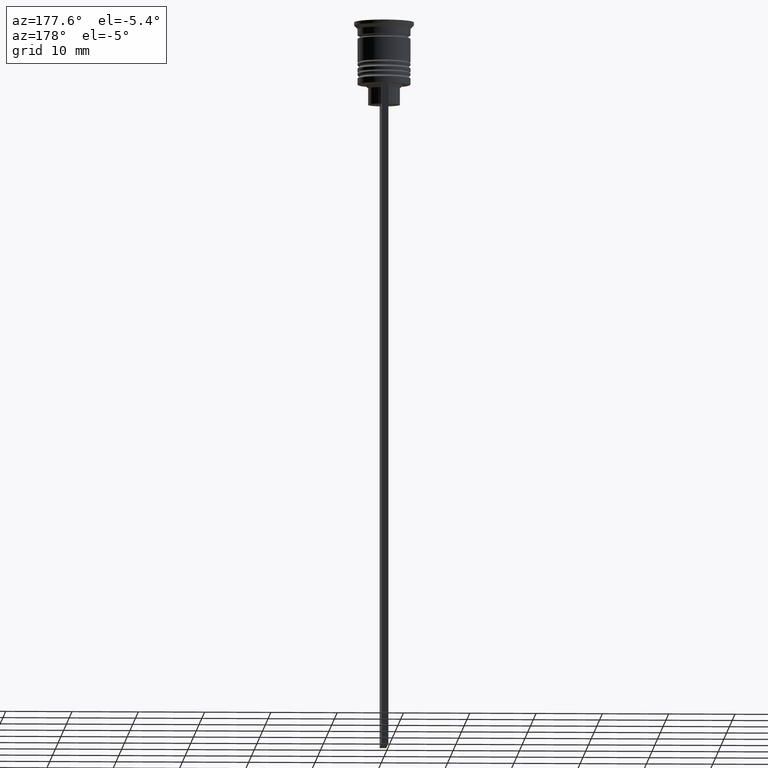
[diagram: clean part render]
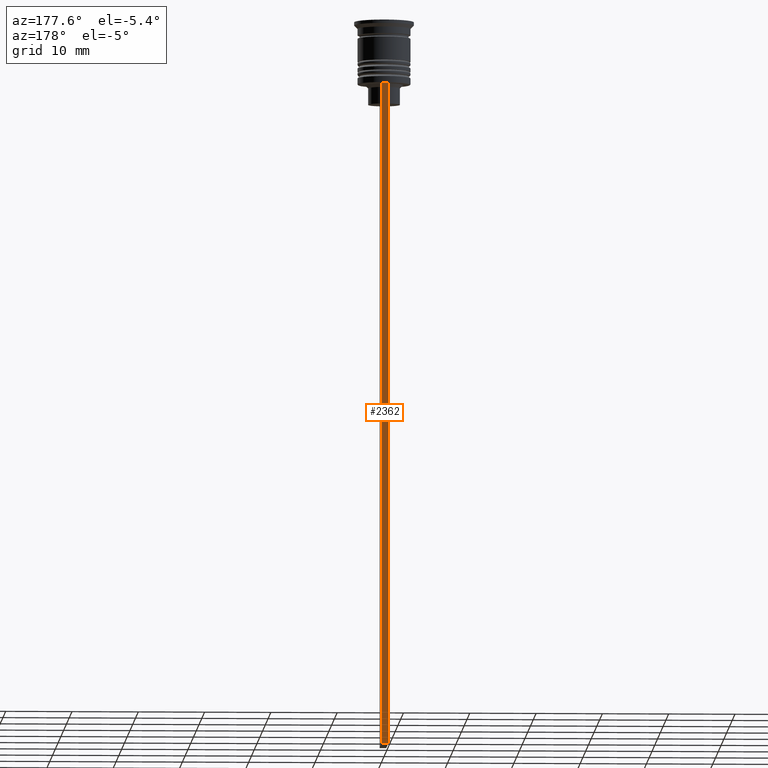
[diagram: same view with one face highlighted and labeled with its STEP entity id]
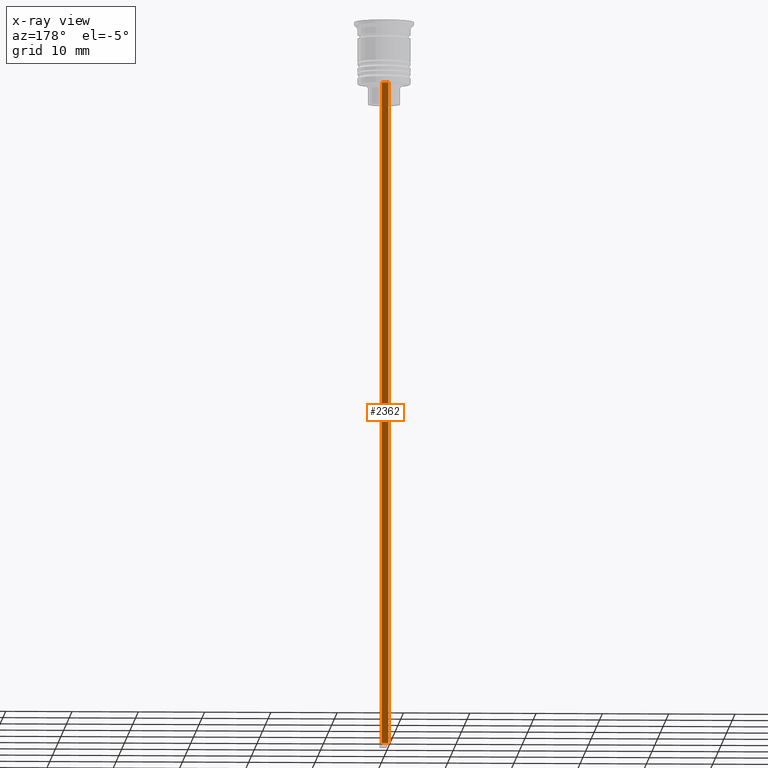
[diagram: x-ray of the same camera — body ghosted, the highlighted face saturated]
A machine part, auxiliary view. The second image highlights one B-rep face of the part: STEP entity #2362.
The next image is the same camera in x-ray: the body ghosted, the highlighted face saturated — about 0% of this face is hidden behind the body in this view.
In plain terms, the highlighted planar face has unit normal (0, -1, -0).
Its self-contained STEP definition (entity closure, byte-faithful):
#14 = VECTOR ( 'NONE', #1185, 1000.000000000000000 ) ;
#22 = VERTEX_POINT ( 'NONE', #433 ) ;
#36 = ORIENTED_EDGE ( 'NONE', *, *, #983, .F. ) ;
#100 = ORIENTED_EDGE ( 'NONE', *, *, #1430, .T. ) ;
#208 = CARTESIAN_POINT ( 'NONE',  ( 0.5000000000000000000, 4.000000000000000000, -109.5000000000000000 ) ) ;
#259 = CARTESIAN_POINT ( 'NONE',  ( 0.5000000000000000000, 4.000000000000000000, -9.500000000000000000 ) ) ;
#360 = DIRECTION ( 'NONE',  ( 0.000000000000000000, 0.000000000000000000, -1.000000000000000000 ) ) ;
#379 = VERTEX_POINT ( 'NONE', #1624 ) ;
#404 = CARTESIAN_POINT ( 'NONE',  ( -0.5000000000000000000, 4.000000000000000000, -1.437742251701450202 ) ) ;
#432 = DIRECTION ( 'NONE',  ( 0.000000000000000000, 0.000000000000000000, -1.000000000000000000 ) ) ;
#433 = CARTESIAN_POINT ( 'NONE',  ( 0.5000000000000000000, 4.000000000000000000, -9.500000000000000000 ) ) ;
#711 = ORIENTED_EDGE ( 'NONE', *, *, #1812, .T. ) ;
#777 = CARTESIAN_POINT ( 'NONE',  ( 0.5000000000000000000, 4.000000000000000000, -1.437742251701450202 ) ) ;
#983 = EDGE_CURVE ( 'NONE', #1806, #379, #1353, .T. ) ;
#985 = VERTEX_POINT ( 'NONE', #208 ) ;
#1005 = DIRECTION ( 'NONE',  ( 1.000000000000000000, 0.000000000000000000, 0.000000000000000000 ) ) ;
#1032 = EDGE_CURVE ( 'NONE', #1806, #22, #1399, .T. ) ;
#1046 = EDGE_LOOP ( 'NONE', ( #36, #1362, #100, #711 ) ) ;
#1062 = PLANE ( 'NONE',  #1644 ) ;
#1105 = LINE ( 'NONE', #1905, #1222 ) ;
#1117 = CARTESIAN_POINT ( 'NONE',  ( -0.5000000000000000000, 4.000000000000000000, -9.500000000000000000 ) ) ;
#1185 = DIRECTION ( 'NONE',  ( 0.000000000000000000, 0.000000000000000000, -1.000000000000000000 ) ) ;
#1209 = DIRECTION ( 'NONE',  ( 0.000000000000000000, -1.000000000000000000, -0.000000000000000000 ) ) ;
#1222 = VECTOR ( 'NONE', #1692, 1000.000000000000000 ) ;
#1353 = LINE ( 'NONE', #404, #14 ) ;
#1362 = ORIENTED_EDGE ( 'NONE', *, *, #1032, .T. ) ;
#1399 = LINE ( 'NONE', #259, #2093 ) ;
#1430 = EDGE_CURVE ( 'NONE', #22, #985, #2306, .T. ) ;
#1624 = CARTESIAN_POINT ( 'NONE',  ( -0.5000000000000000000, 4.000000000000000000, -109.5000000000000000 ) ) ;
#1644 = AXIS2_PLACEMENT_3D ( 'NONE', #2195, #1209, #432 ) ;
#1692 = DIRECTION ( 'NONE',  ( -1.000000000000000000, 0.000000000000000000, 0.000000000000000000 ) ) ;
#1783 = FACE_OUTER_BOUND ( 'NONE', #1046, .T. ) ;
#1806 = VERTEX_POINT ( 'NONE', #1117 ) ;
#1812 = EDGE_CURVE ( 'NONE', #985, #379, #1105, .T. ) ;
#1901 = VECTOR ( 'NONE', #360, 1000.000000000000000 ) ;
#1905 = CARTESIAN_POINT ( 'NONE',  ( 0.5000000000000000000, 4.000000000000000000, -109.5000000000000000 ) ) ;
#2093 = VECTOR ( 'NONE', #1005, 1000.000000000000000 ) ;
#2195 = CARTESIAN_POINT ( 'NONE',  ( 0.5000000000000000000, 4.000000000000000000, -1.437742251701450202 ) ) ;
#2306 = LINE ( 'NONE', #777, #1901 ) ;
#2362 = ADVANCED_FACE ( 'NONE', ( #1783 ), #1062, .F. ) ;